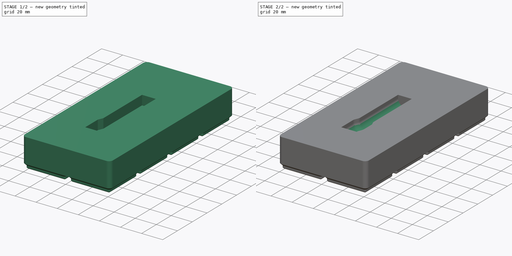
[diagram: build sequence overview — one tinted view per stage of 2, left to right]
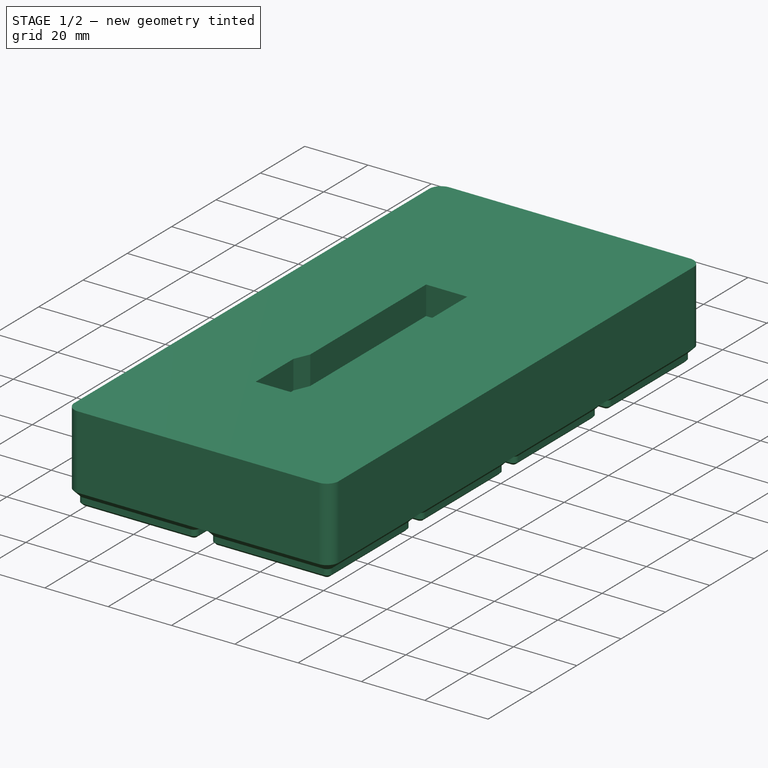
[diagram: stage 1 of 2 — iso view after this stage's code; geometry added in this stage tinted green]
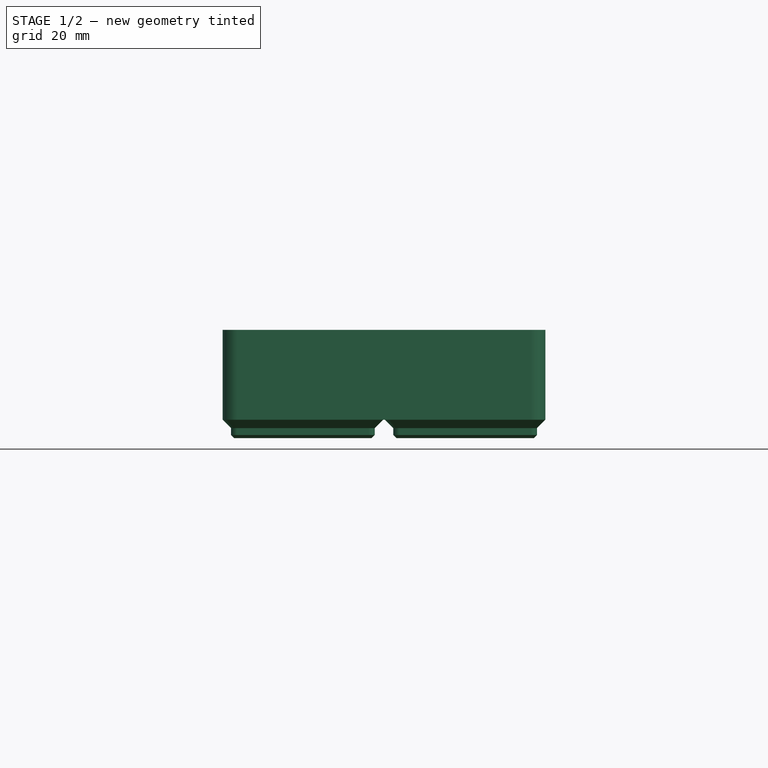
[diagram: stage 1 of 2 — front view after this stage's code; geometry added in this stage tinted green]
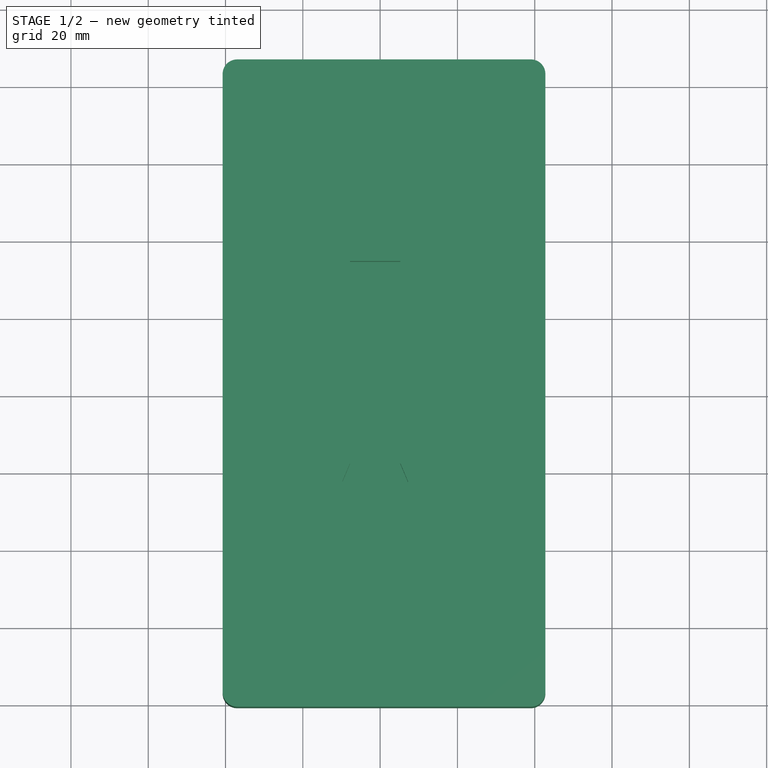
[diagram: stage 1 of 2 — top view after this stage's code; geometry added in this stage tinted green]
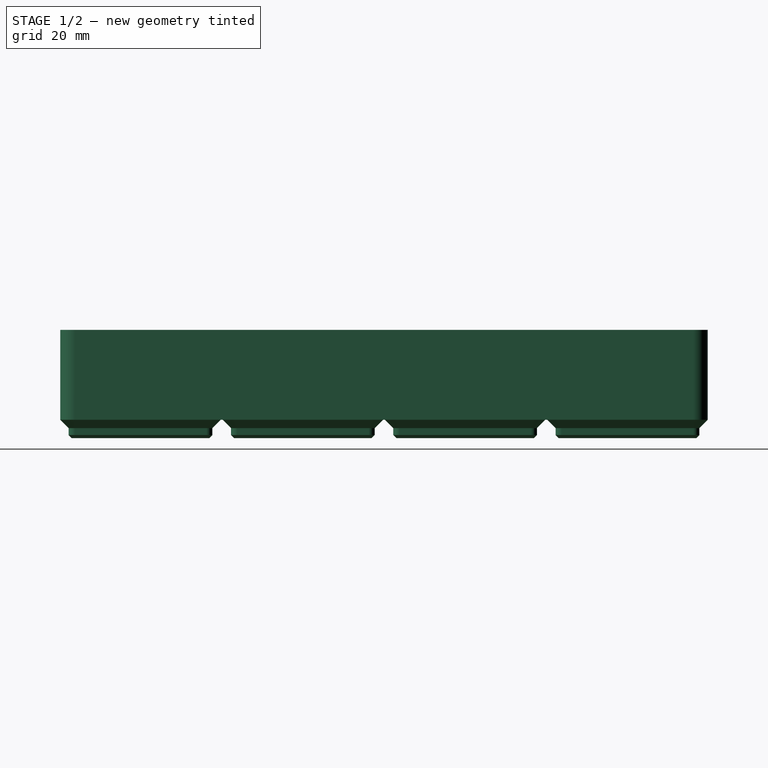
[diagram: stage 1 of 2 — right view after this stage's code; geometry added in this stage tinted green]
FCSTD DOCUMENT  (FreeCAD 0.21R33771 (Git))
Label: random_extensions_gridfinity
License: All rights reserved
LicenseURL: http://en.wikipedia.org/wiki/All_rights_reserved
objects: PartDesign::FeaturePython×1, Sketcher::SketchObject×1, PartDesign::Pocket×1, PartDesign::Fillet×1, PartDesign::Body×1
note: 7 computed .brp shape members not serialized (recipe doc carries the construction recipe); baked Part::Feature solids carry a one-line shape summary decoded from their .brp

FEATURE [PartDesign::FeaturePython] BinBlank  # WARN: FeaturePython — macro-defined, semantics opaque (R4)
  BaseProfileBottomChamfer = 0.8
  BaseProfileHeight = 4.75
  BaseProfileTopChamfer = 2.15
  BaseProfileVerticalSection = 1.8
  BinBottomRadius = 0.8
  BinOuterRadius = 3.75
  BinUnit = 41.5
  BinVerticalRadius = 1.6
  CustomHeight = 42
  GridSize = 42
  HeightUnitValue = 7
  HeightUnits = 4
  MagnetHoleDepth = 2.4
  MagnetHoleDiameter = 6.5
  MagnetHoleDistanceFromEdge = 8
  MagnetHoles = false
  NonStandardHeight = false
  ScrewHoleDepth = 6
  ScrewHoleDiameter = 3
  ScrewHoles = false
  SequentialBridgingLayerHeight = 0.2
  StackingLip = false
  StackingLipBottomChamfer = 0.7
  StackingLipTopChamfer = 1.5
  StackingLipTopLedge = 0.4
  StackingLipVerticalSection = 1.8
  Tolerance = 0.25
  TotalHeight = 28
  WallThickness = 1
  version = 0.5.0
  xGridUnits = 2
  xTotalWidth = 83.5
  yGridUnits = 4
  yTotalWidth = 167.5
FEATURE [Sketcher::SketchObject] Sketch
  FullyConstrained = false
  MapMode = 5
  Placement = pos=(0,0,3.6e-15) rot=(0,0,1;0rad)
  Support = -> [BinBlank]
  sketch-geometry (8):
    g0: LineSegment StartX=27.2149 StartY=37.5371 StartZ=0 EndX=27.2149 EndY=20.5371 EndZ=0
    g1: LineSegment StartX=10.2149 StartY=20.5371 StartZ=0 EndX=10.2149 EndY=37.5371 EndZ=0
    g2: LineSegment StartX=12.2149 StartY=94.5371 StartZ=0 EndX=25.2149 EndY=94.5371 EndZ=0
    g3: LineSegment StartX=25.2149 StartY=94.5371 StartZ=0 EndX=25.2149 EndY=42.2562 EndZ=0
    g4: LineSegment StartX=12.2149 StartY=42.2562 StartZ=0 EndX=12.2149 EndY=94.5371 EndZ=0
    g5: LineSegment StartX=10.2149 StartY=20.5371 StartZ=0 EndX=27.2149 EndY=20.5371 EndZ=0
    g6: LineSegment StartX=10.2149 StartY=37.5371 StartZ=0 EndX=12.2149 EndY=42.2562 EndZ=0
    g7: LineSegment StartX=27.2149 StartY=37.5371 StartZ=0 EndX=25.2149 EndY=42.2562 EndZ=0
  constraints (20):
    c: Vertical(g0)
    c: Vertical(g1)
    c: DistanceX(g1,g0) = 17
    c: DistanceY(g0,g0) = 17
    c: Coincident(g2,g3)
    c: Coincident(g4,g2)
    c: Horizontal(g2)
    c: Vertical(g3)
    c: Vertical(g4)
    c: DistanceX(g2,g2) = 13
    c: Coincident(g5,g1)
    c: Coincident(g5,g0)
    c: Horizontal(g5)
    c: Coincident(g7,g0)
    c: Horizontal(g6,g7)
    c: Horizontal(g1,g0)
    c: Coincident(g4,g6)
    c: Coincident(g3,g7)
    c: DistanceY(g1,g2) = 74
    c: DistanceY(g4,g4) = 52.2809
FEATURE [PartDesign::Pocket] Pocket
  BaseFeature = -> BinBlank
  Direction = (0,0,-1)
  Length = 9
  Length2 = 5
  Profile = -> Sketch
  ReferenceAxis = -> Sketch [N_Axis]
  Type = 0
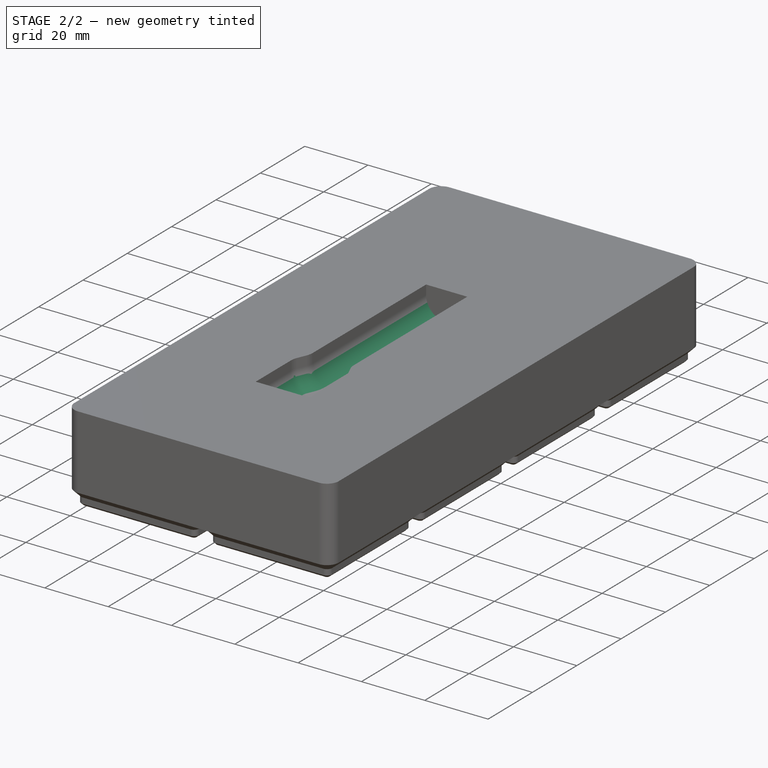
[diagram: stage 2 of 2 — iso view after this stage's code; geometry added in this stage tinted green]
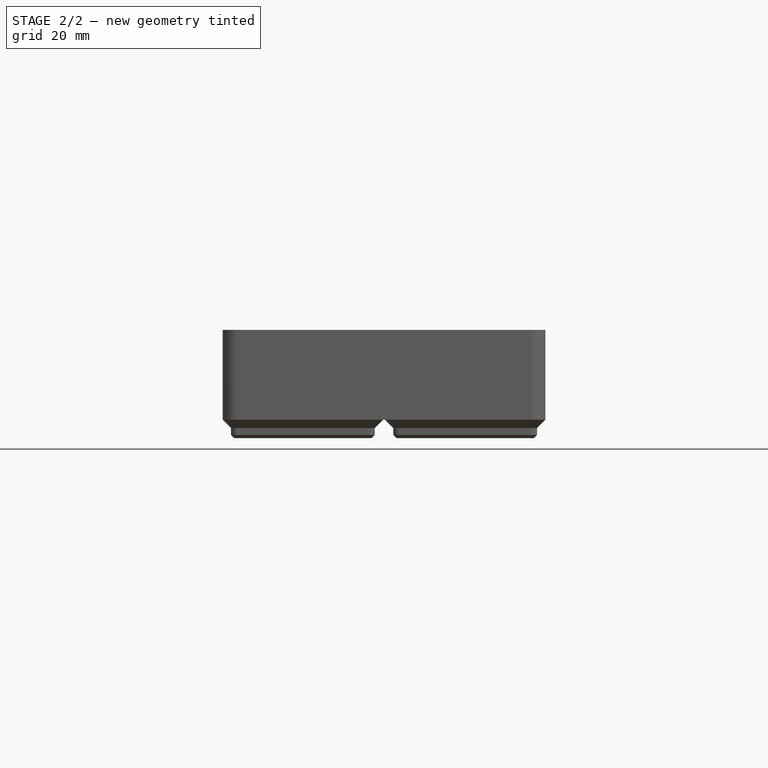
[diagram: stage 2 of 2 — front view after this stage's code; geometry added in this stage tinted green]
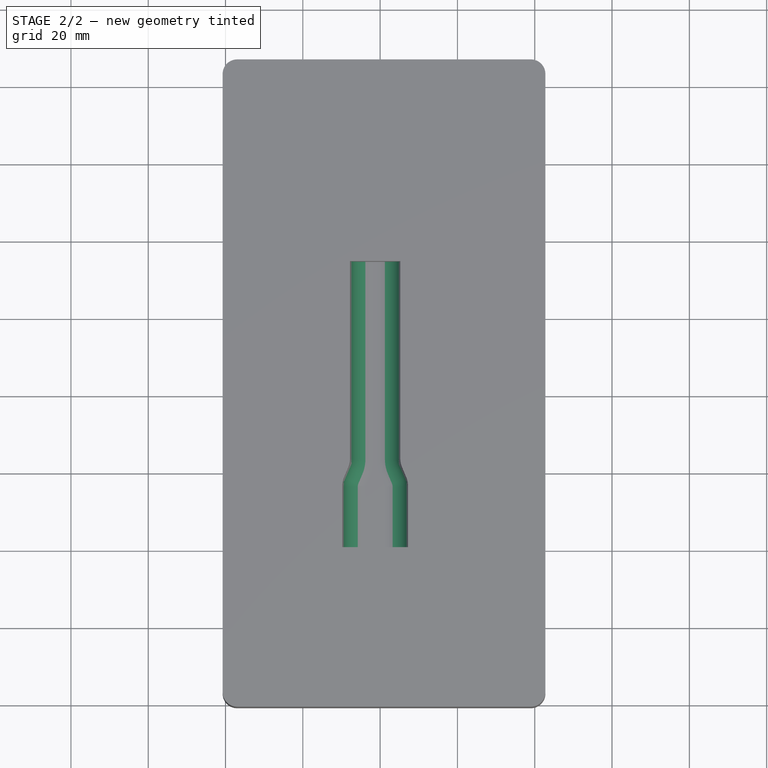
[diagram: stage 2 of 2 — top view after this stage's code; geometry added in this stage tinted green]
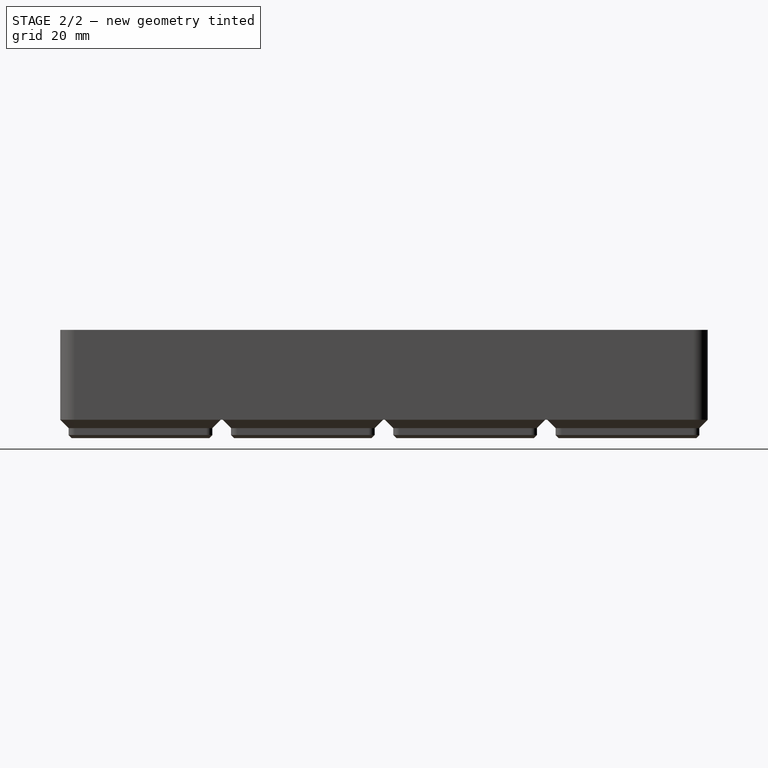
[diagram: stage 2 of 2 — right view after this stage's code; geometry added in this stage tinted green]
FEATURE [PartDesign::Fillet] Fillet
  Base = -> Pocket [Edge126,Edge127,Edge128,Edge129,Edge131,Edge123,Edge120,Edge119,Edge121,Edge134]
  BaseFeature = -> Pocket
  Radius = 6
  SupportTransform = false
  UseAllEdges = false
FEATURE [PartDesign::Body] Body
  Group = -> [BinBlank,Sketch,Pocket,Fillet]
  Origin = -> Origin
  Tip = -> Fillet
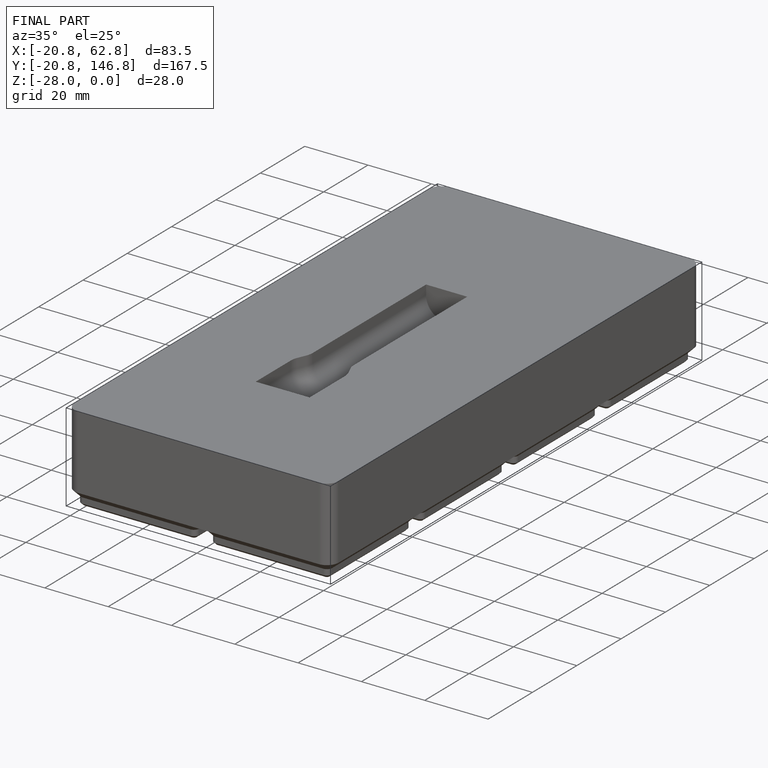
[diagram: finished part — iso view with bounding-box wireframe]
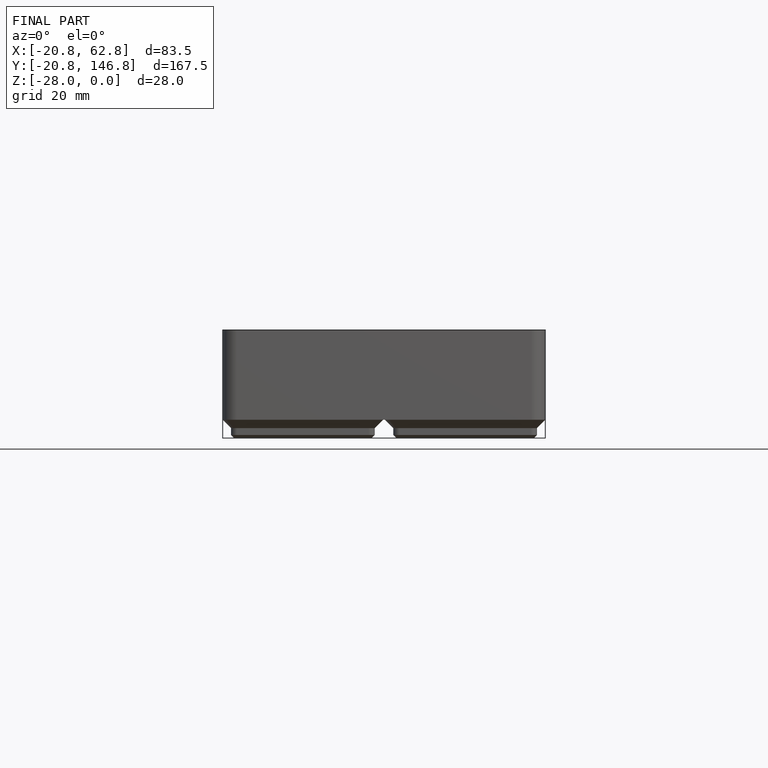
[diagram: finished part — front view with bounding-box wireframe]
